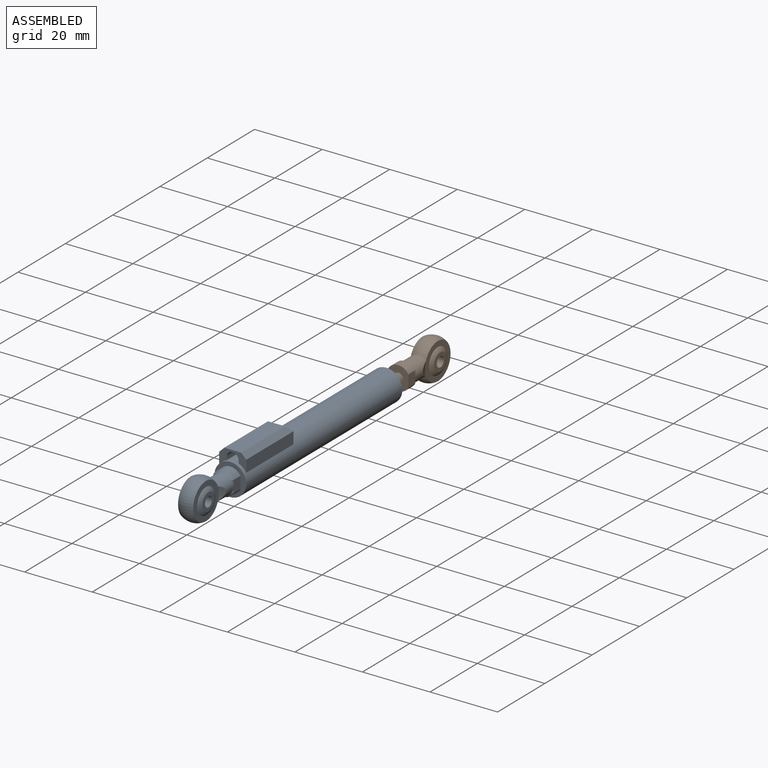
[diagram: assembled view]
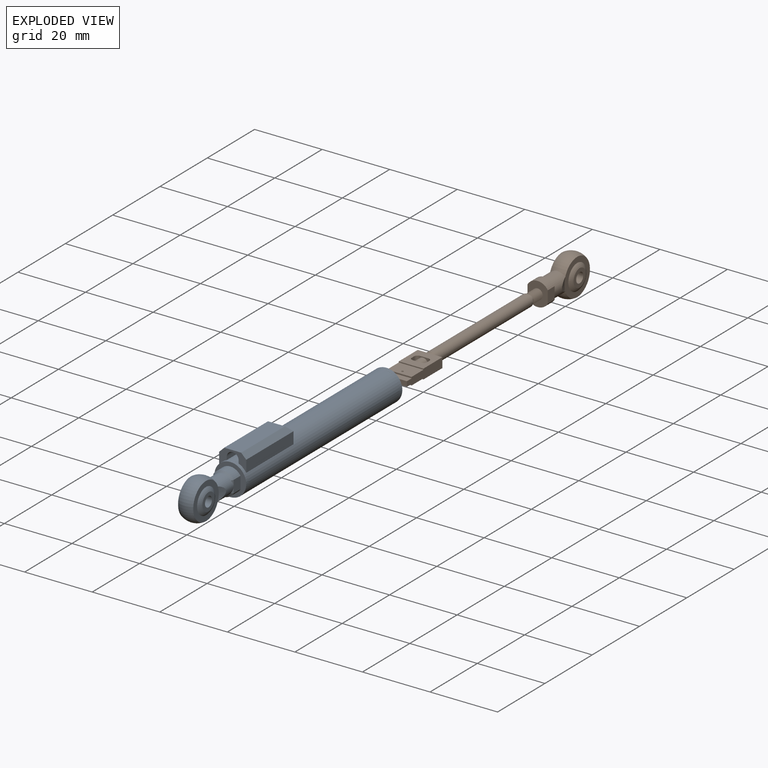
[diagram: exploded view]
GUIDED TOUR — MATED ASSEMBLY WITH SUBASSEMBLIES (Onshape document 576003d3e4b018f59e4c8b55, AutoMate assembly 576003d3e4b018f59e4c8b55_1c0224dda3f2e9fd034bd184_6c8772f203ad3eed3623a951_default)

This assembly has 10 component occurrences arranged in 2 top-level units: 0 individual components plus 2 subassemblies (S0, S1). The tour has two levels: first the top level, where each subassembly is treated as one rigid unit; then each subassembly is toured internally in its own section (nesting deeper than one subassembly level is flattened into its subassembly's section).

Components are labeled P0..P9 across the whole record; subassembly units are labeled S0..S1. A mate is a constraint between two units; its type names the relative motion it leaves free:
  FASTENED — locks the two components together rigidly (no relative motion),
  SLIDER — leaves translation along the listed axis free.
Axis/direction vectors are unit vectors and 'through' points are millimeter coordinates, both in the assembly's world frame.

TOP-LEVEL MATES (between units; each subassembly's internal mates are listed in its own section)
  1. SLIDER "Slider 1": S1 <-> S0, axis (0.000, -1.000, 0.000) through (-0.16, -10.88, 0.18) mm

TOP-LEVEL ASSEMBLY ORDER
  1. S0 — the base component [order heuristic]
  2. S1 [order heuristic]
Order-tag legend:
  [order heuristic] — this assembly is geometrically interlocked (no collision-free removal order exists), so components are listed in mate-graph order; insertion feasibility is not verified.

Of the 10 component occurrences, 6 carry the full construction recipe — the FeatureScript program that regenerates the part's solid from scratch; the rest are supplied as boundary geometry only. Each toured unit is shown spotlighted twice — assembled, then exploded with a leader line back to its socket (green = recipe-attached component, orange = geometry-only, blue = subassembly unit; the rest desaturated gray).
NOTE — document 2 of 2 of this assembly tour. The two overview renders and the header above are repeated from document 1; the component sections below continue where the previous document stopped.
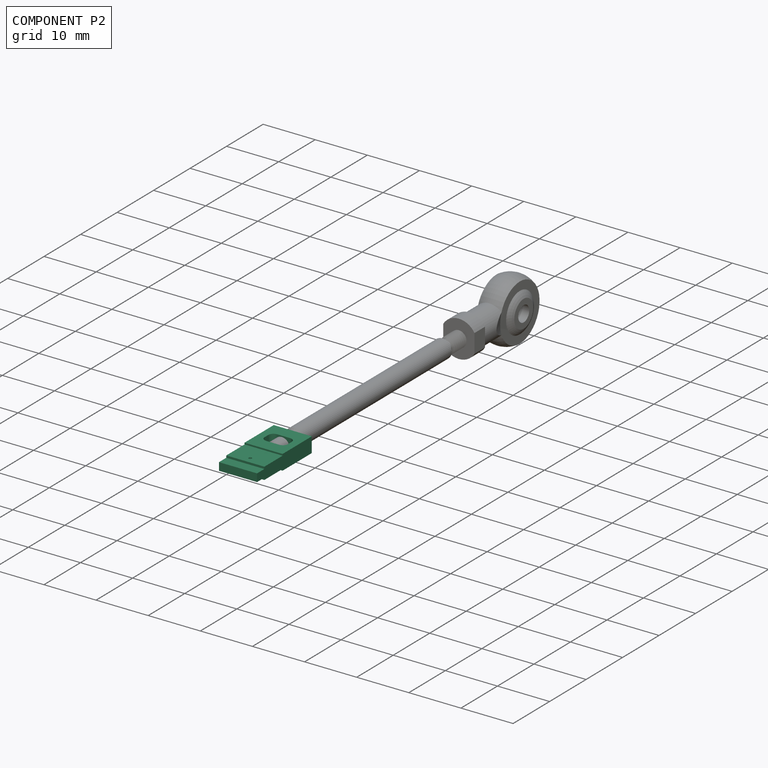
[diagram: component P2 — assembled]
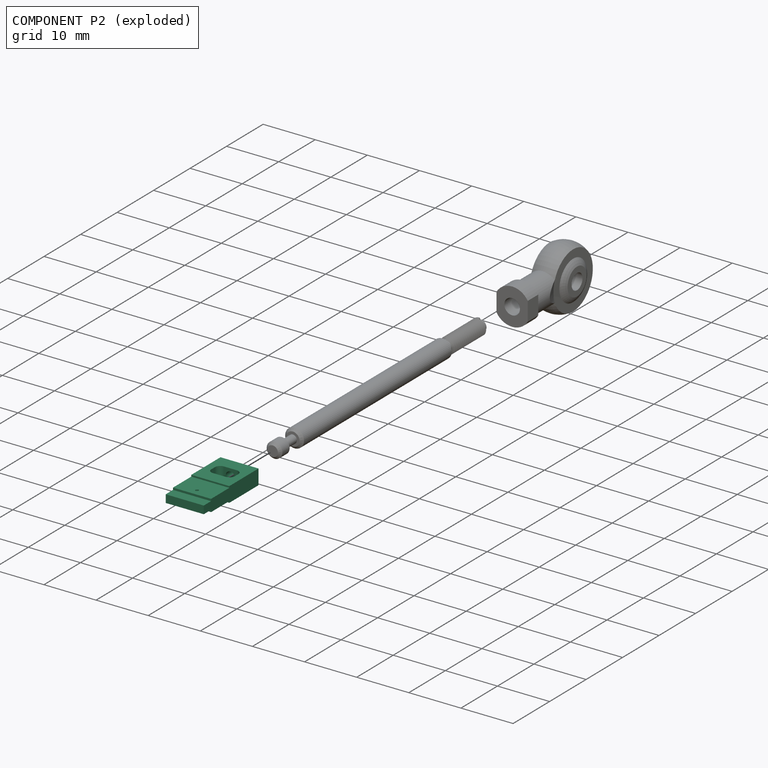
[diagram: component P2 — exploded]
COMPONENT P2 — recipe-attached (CADFS 00161444, mesh-verified: the recipe's output STEP matches this component's geometry to below the mesh-comparison resolution (tessellation chordal tolerance ~0.0254 mm)).
Held by: FASTENED mate "Fastened 2" to P8; FASTENED mate "Fastened 2" to P8.
Construction recipe (FeatureScript — the CAD program that rebuilds this solid; sketch coordinates are in the units given by the * unit suffixes, e.g. mm):

FeatureScript 1511;
import(path : "onshape/std/geometry.fs", version : "1511.0");
import(path : "onshape/std/common.fs", version : "1511.0");
const mm = millimeter;
const VERTEX = EntityType.VERTEX;
const EDGE = EntityType.EDGE;
const FACE = EntityType.FACE;
const BODY = EntityType.BODY;
function v(x, y){return vector(x, y);}
function OD(order){return orderDisambiguation(order);}
function OSD(set){return originalSetDisambiguation(set);}
function TD(topology){return topologyDisambiguation(topology);}
function TDD(query){return trueDependencyDisambiguation(query);}
function sQuery(a, b, c) {return sketchEntityQuery(a, b, c);}

annotation { "Feature Type Name" : "Feature", "Feature Type Description" : "" }
export const myFeature = defineFeature(function(context is Context, id is Id, definition is map)
    precondition{}
    {
        {
            assignVariable(context, id + "F0", {"name" : "Main_Width", "anyValue" : 7.3});
        }
        {
            var Q0;
            Q0=qCreatedBy(makeId("Right.planeOp"),FACE);
            var sketch = newSketch(context, id + "F1", { "sketchPlane" : qUnion([Q0])});
            skLineSegment(sketch, "E0", {"start": v(0, 0) * mm, "end": v(0, 1.45) * mm});
            skLineSegment(sketch, "E1", {"start": v(0, 1.45) * mm, "end": v(8, 1.45) * mm});
            skLineSegment(sketch, "E2", {"start": v(8, 1.45) * mm, "end": v(8, 1.15) * mm});
            skLineSegment(sketch, "E3", {"start": v(8, 1.15) * mm, "end": v(13, 1.15) * mm});
            skLineSegment(sketch, "E4", {"start": v(13, 1.15) * mm, "end": v(13, 0.75) * mm});
            skLineSegment(sketch, "E5", {"start": v(13, 0.75) * mm, "end": v(15, 0.75) * mm});
            skLineSegment(sketch, "E6", {"start": v(15, 0.75) * mm, "end": v(15, 0) * mm});
            skLineSegment(sketch, "E7", {"start": v(0, 0) * mm, "end": v(15, 0) * mm, "construction": true});
            skLineSegment(sketch, "E8.MirrorCS", {"start": v(0, -1.45) * mm, "end": v(8, -1.45) * mm});
            skLineSegment(sketch, "E9.MirrorCS", {"start": v(8, -1.45) * mm, "end": v(8, -1.15) * mm});
            skLineSegment(sketch, "E10.MirrorCS", {"start": v(0, 0) * mm, "end": v(0, -1.45) * mm});
            skLineSegment(sketch, "E11.MirrorCS", {"start": v(13, -0.75) * mm, "end": v(15, -0.75) * mm});
            skLineSegment(sketch, "E12.MirrorCS", {"start": v(15, -0.75) * mm, "end": v(15, 0) * mm});
            skLineSegment(sketch, "E13.MirrorCS", {"start": v(13, -1.15) * mm, "end": v(13, -0.75) * mm});
            skLineSegment(sketch, "E14.MirrorCS", {"start": v(8, -1.15) * mm, "end": v(13, -1.15) * mm});
            skSolve(sketch);
        }
        {
            var Q0;
            Q0=makeQuery(id+"F1.imprint","IMPRINT",FACE,{"disambiguationData":[TD([[makeQuery(id+"F1.imprint","IMPRINT",EDGE,{"derivedFrom":sQuery(id+"F1.wireOp",EDGE,"E0")}),-1.0]])]});
            extrude(context, id + "F2", {"entities" : qUnion([Q0]), "depth" : (getVariable(context, 'Main_Width')) * mm});
        }
        {
            var Q0;
            Q0=makeQuery(id+"F2.opExtrude","SWEPT_FACE",FACE,{"disambiguationData":[OSD([sQuery(id+"F1.wireOp",EDGE,"E1")])]});
            var sketch = newSketch(context, id + "F3", { "sketchPlane" : qUnion([Q0])});
            skCircle(sketch, "E15", {"center": v(3.65, 11.65) * mm, "radius": 0.3 * mm});
            skLineSegment(sketch, "E16.0", {"start": v(7.3, 0) * mm, "end": v(0, 0) * mm});
            skLineSegment(sketch, "E17", {"start": v(3.65, 11.65) * mm, "end": v(3.65, 0) * mm, "construction": true});
            skPoint(sketch, "E17.endSnap0", {"position": v(3.65, 0) * mm});
            skLineSegment(sketch, "E18.bottom", {"start": v(2.4, 2.5) * mm, "end": v(4.9, 2.5) * mm});
            skLineSegment(sketch, "E18.top", {"start": v(2.4, 5.5) * mm, "end": v(4.9, 5.5) * mm});
            skLineSegment(sketch, "E18.left", {"start": v(2.4, 2.5) * mm, "end": v(2.4, 5.5) * mm, "construction": true});
            skLineSegment(sketch, "E18.right", {"start": v(4.9, 2.5) * mm, "end": v(4.9, 5.5) * mm, "construction": true});
            skPoint(sketch, "E18.middle", {"position": v(3.65, 4) * mm});
            skArc(sketch, "E19", {"start": v(1.4, 3.5) * mm, "mid": v(1.7, 2.8) * mm, "end": v(2.4, 2.5) * mm});
            skArc(sketch, "E20", {"start": v(2.4, 5.5) * mm, "mid": v(1.7, 5.2) * mm, "end": v(1.4, 4.5) * mm});
            skLineSegment(sketch, "E21", {"start": v(1.4, 3.5) * mm, "end": v(1.4, 4.5) * mm});
            skArc(sketch, "E22.MirrorCS", {"start": v(4.9, 5.5) * mm, "mid": v(5.6, 5.2) * mm, "end": v(5.9, 4.5) * mm});
            skLineSegment(sketch, "E23.MirrorCS", {"start": v(5.9, 3.5) * mm, "end": v(5.9, 4.5) * mm});
            skArc(sketch, "E24.MirrorCS", {"start": v(5.9, 3.5) * mm, "mid": v(5.6, 2.8) * mm, "end": v(4.9, 2.5) * mm});
            skSolve(sketch);
        }
        {
            var Q0;
            Q0=makeQuery(id+"F3.imprint","IMPRINT",FACE,{"disambiguationData":[TD([[makeQuery(id+"F3.imprint","IMPRINT",EDGE,{"derivedFrom":sQuery(id+"F3.wireOp",EDGE,"E18.bottom")}),1.0]])]});
            var Q1;
            Q1=makeQuery(id+"F3.imprint","IMPRINT",FACE,{"disambiguationData":[TD([[makeQuery(id+"F3.imprint","IMPRINT",EDGE,{"derivedFrom":sQuery(id+"F3.wireOp",EDGE,"E15")}),1.0]])]});
            extrude(context, id + "F4", {"entities" : qUnion([Q0, Q1]), "operationType" : NewBodyOperationType.REMOVE, "endBound" : BoundingType.THROUGH_ALL, "oppositeDirection" : true, "depth" : 25 * mm});
        }
        {
            var Q0;
            Q0=makeQuery(id+"F2.opExtrude","SWEPT_FACE",FACE,{"disambiguationData":[OSD([sQuery(id+"F1.wireOp",EDGE,"E0"),sQuery(id+"F1.wireOp",EDGE,"E10.MirrorCS")])]});
            var sketch = newSketch(context, id + "F5", { "sketchPlane" : qUnion([Q0])});
            skLineSegment(sketch, "E25.0.0", {"start": v(0, 1.45) * mm, "end": v(0, -1.45) * mm});
            skLineSegment(sketch, "E25.0.1", {"start": v(0, -1.45) * mm, "end": v(7.3, -1.45) * mm});
            skLineSegment(sketch, "E25.0.2", {"start": v(7.3, -1.45) * mm, "end": v(7.3, 1.45) * mm});
            skLineSegment(sketch, "E25.0.3", {"start": v(7.3, 1.45) * mm, "end": v(0, 1.45) * mm});
            skArc(sketch, "E26", {"start": v(2.9, 0.5) * mm, "mid": v(3.65, -0.9) * mm, "end": v(4.4, 0.5) * mm});
            skLineSegment(sketch, "E27", {"start": v(3.65, 1.45) * mm, "end": v(3.65, -1.45) * mm, "construction": true});
            skLineSegment(sketch, "E28", {"start": v(2.9, 0.5) * mm, "end": v(2.9, 1.45) * mm});
            skLineSegment(sketch, "E29", {"start": v(4.4, 0.5) * mm, "end": v(4.4, 1.45) * mm});
            skSolve(sketch);
        }
        {
            var Q0;
            Q0=makeQuery(id+"F5.imprint","IMPRINT",FACE,{"disambiguationData":[TD([[makeQuery(id+"F5.imprint","IMPRINT",EDGE,{"derivedFrom":sQuery(id+"F5.wireOp",EDGE,"E26")}),1.0]])]});
            extrude(context, id + "F6", {"entities" : qUnion([Q0]), "operationType" : NewBodyOperationType.REMOVE, "endBound" : BoundingType.UP_TO_NEXT, "oppositeDirection" : true, "depth" : 25 * mm});
        }
    });
PROVENANCE & LICENSES
Assembly (occurrences, transforms, mates, per-part STEP geometry): AutoMate dataset, Zenodo record 7776208, CC0.
Construction recipes: CADFS (HuggingFace VladPyatov/CADFS, CC-BY-4.0, layered over the ABC dataset), FeatureScript reconstruction programs keyed by ABC model id.
Join: ABC meta listings map ABC model id -> Onshape documentId; within a shared document, parts are matched by geometric signature (bounding-box dims + volume at 0.1% relative tolerance, exact B-rep face/solid counts).
Verification: 6 of this assembly's 10 components carry a recipe attachment, and every attachment is mesh-verified: the CADFS STEP and the AutoMate member STEP were compared as meshes in their shared local frame (symmetric sampled-point-to-mesh distance); worst across the 6 attachments: below the mesh-comparison resolution (tessellation chordal tolerance ~0.098 mm) on a 65 mm part.
Renders: orthographic iso camera (az 35 / el 25); the floor grid conveys scale (grid pitch printed in each image; no ruler). In the exploded view each component is displaced by its stored offset vector: the offsets alone carry the explosion direction (mate normal/axis signs are not orientation cues and do not encode it), and separation distances are assigned per mate-chain, not proportionally to assembly-order depth.
